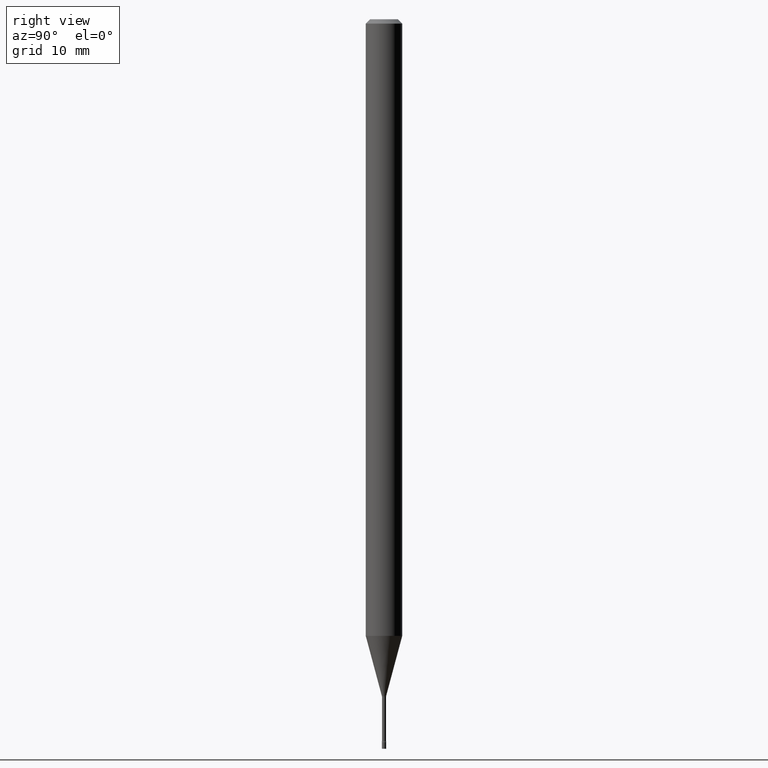
[diagram: clean part render]
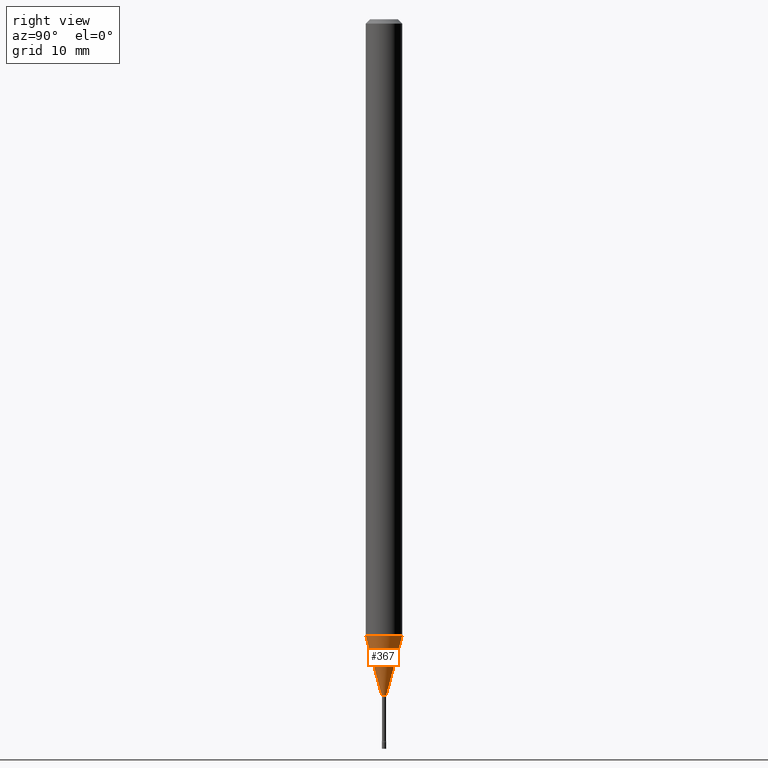
[diagram: same view with one face highlighted and labeled with its STEP entity id]
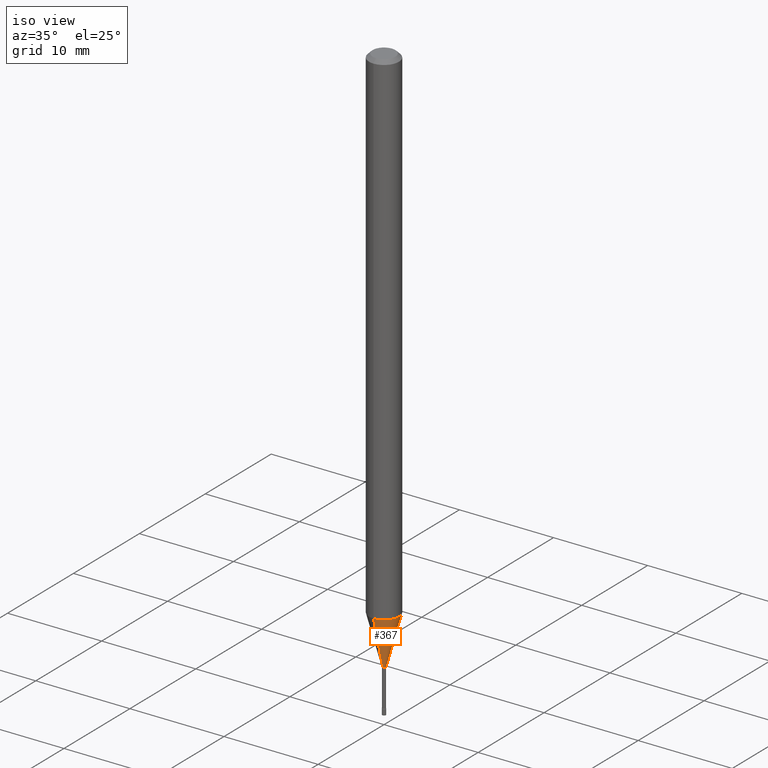
[diagram: same view with one face highlighted and labeled with its STEP entity id]
A machine part, right view. The second image highlights one B-rep face of the part: STEP entity #367.
A second angle (iso view) of the same face is appended — the face is thin or edge-on in the first view.
In plain terms, the highlighted conical surface has half-angle 15 deg.
Its self-contained STEP definition (entity closure, byte-faithful):
#12 = AXIS2_PLACEMENT_3D ( 'NONE', #134, #256, #304 ) ;
#19 = CARTESIAN_POINT ( 'NONE',  ( 5.668745554017545725E-29, -8.093687479808324589E-15, -2.318092501787273108 ) ) ;
#38 = LINE ( 'NONE', #243, #512 ) ;
#39 = EDGE_CURVE ( 'NONE', #165, #189, #357, .T. ) ;
#45 = CARTESIAN_POINT ( 'NONE',  ( 2.489070731061789820E-16, 0.007561112605655881391, -2.318092501787273108 ) ) ;
#75 = DIRECTION ( 'NONE',  ( -2.445435438683695197E-29, 3.491529123004369972E-15, 1.000000000000000000 ) ) ;
#111 = ORIENTED_EDGE ( 'NONE', *, *, #190, .T. ) ;
#125 = CARTESIAN_POINT ( 'NONE',  ( 5.372493636224328291E-17, 0.007561112605655881391, -2.318092501787273108 ) ) ;
#134 = CARTESIAN_POINT ( 'NONE',  ( 5.167346385850627503E-29, -7.377802786958990502E-15, -2.113057782720306310 ) ) ;
#146 = EDGE_LOOP ( 'NONE', ( #202, #111, #397, #294 ) ) ;
#162 = EDGE_CURVE ( 'NONE', #165, #319, #38, .T. ) ;
#165 = VERTEX_POINT ( 'NONE', #359 ) ;
#169 = DIRECTION ( 'NONE',  ( -2.445435438683695197E-29, 3.491529123004369972E-15, 1.000000000000000000 ) ) ;
#188 = DIRECTION ( 'NONE',  ( -6.982962677686265133E-15, -1.000000000000000000, 0.000000000000000000 ) ) ;
#189 = VERTEX_POINT ( 'NONE', #45 ) ;
#190 = EDGE_CURVE ( 'NONE', #189, #400, #276, .T. ) ;
#202 = ORIENTED_EDGE ( 'NONE', *, *, #39, .T. ) ;
#204 = CONICAL_SURFACE ( 'NONE', #406, 0.007561112605663975611, 0.2617993877991499074 ) ;
#243 = CARTESIAN_POINT ( 'NONE',  ( -5.279896712707800376E-17, -0.007561112605672069831, -2.318092501787273108 ) ) ;
#256 = DIRECTION ( 'NONE',  ( -2.445435438683695197E-29, 3.491529123004369972E-15, 1.000000000000000000 ) ) ;
#276 = LINE ( 'NONE', #125, #453 ) ;
#285 = DIRECTION ( 'NONE',  ( 1.839019923739597554E-15, 0.2588190451025245697, 0.9659258262890670910 ) ) ;
#294 = ORIENTED_EDGE ( 'NONE', *, *, #162, .F. ) ;
#304 = DIRECTION ( 'NONE',  ( -6.982962677686265922E-15, -1.000000000000000000, 4.370956789862821150E-15 ) ) ;
#319 = VERTEX_POINT ( 'NONE', #342 ) ;
#338 = DIRECTION ( 'NONE',  ( -6.982962677686265133E-15, -1.000000000000000000, 0.000000000000000000 ) ) ;
#342 = CARTESIAN_POINT ( 'NONE',  ( -4.364351673553400483E-16, -0.06250000000000739686, -2.113057782720305866 ) ) ;
#351 = CARTESIAN_POINT ( 'NONE',  ( 5.668745554017545725E-29, -8.093687479808324589E-15, -2.318092501787273108 ) ) ;
#357 = CIRCLE ( 'NONE', #482, 0.007561112605663975611 ) ;
#359 = CARTESIAN_POINT ( 'NONE',  ( -5.279896712707800376E-17, -0.007561112605672069831, -2.318092501787273108 ) ) ;
#367 = ADVANCED_FACE ( 'NONE', ( #426 ), #204, .T. ) ;
#379 = CARTESIAN_POINT ( 'NONE',  ( 4.440892098501141880E-16, 0.06249999999999262396, -2.113057782720306310 ) ) ;
#397 = ORIENTED_EDGE ( 'NONE', *, *, #517, .F. ) ;
#400 = VERTEX_POINT ( 'NONE', #379 ) ;
#406 = AXIS2_PLACEMENT_3D ( 'NONE', #19, #169, #338 ) ;
#426 = FACE_OUTER_BOUND ( 'NONE', #146, .T. ) ;
#453 = VECTOR ( 'NONE', #285, 39.37007874015748854 ) ;
#476 = DIRECTION ( 'NONE',  ( -1.807323732225327773E-15, -0.2588190451025178529, 0.9659258262890690894 ) ) ;
#482 = AXIS2_PLACEMENT_3D ( 'NONE', #351, #75, #188 ) ;
#512 = VECTOR ( 'NONE', #476, 39.37007874015748143 ) ;
#513 = CIRCLE ( 'NONE', #12, 0.06250000000000000000 ) ;
#517 = EDGE_CURVE ( 'NONE', #319, #400, #513, .T. ) ;